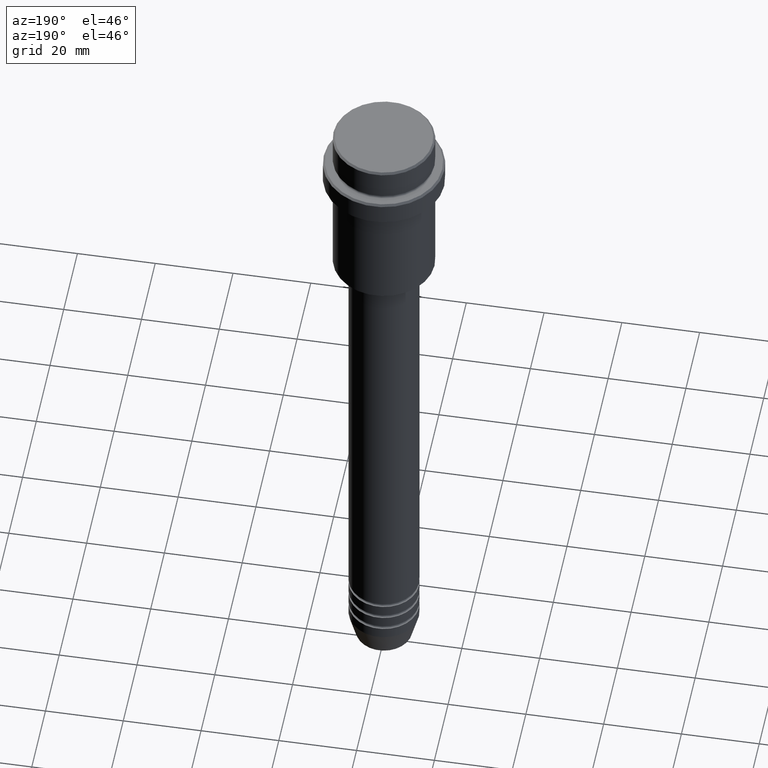
[diagram: clean part render]
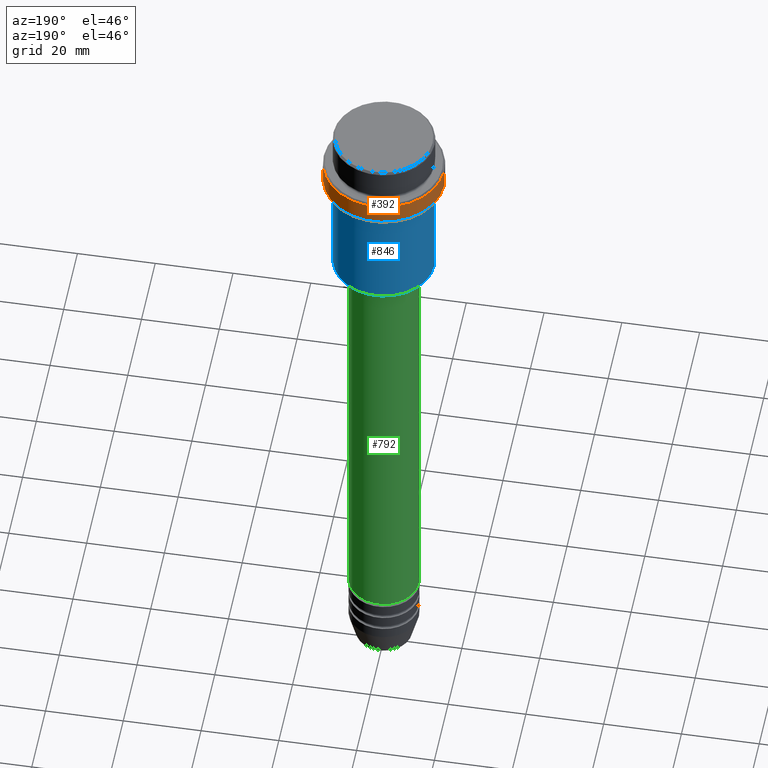
[diagram: same view with three faces highlighted in distinct colors, each labeled with its STEP entity id]
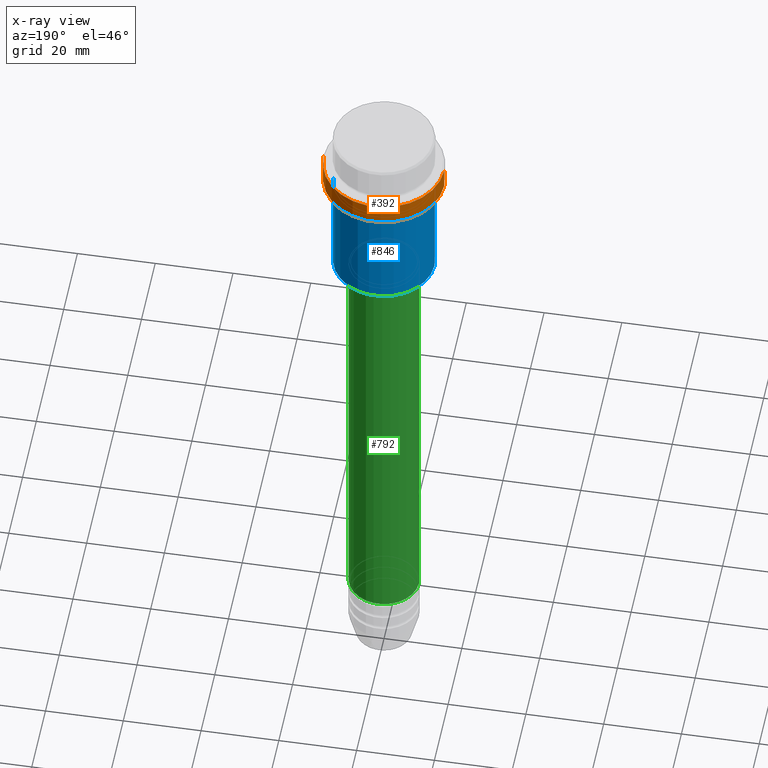
[diagram: x-ray of the same camera — body ghosted, the three highlighted faces saturated]
A machine part, auxiliary view with three faces highlighted in distinct colors.
The next image is the same camera in x-ray (body ghosted, the three faces saturated) — at least one of them is partly hidden behind the body in this view.
Their STEP definitions:

[orange] entity #392 — the highlighted cylindrical surface (partial cylindrical patch) has radius 15.5 mm, axis along (-0, -0, 1).
#26 = CARTESIAN_POINT ( 'NONE',  ( 15.50000000000000000, 0.000000000000000000, 0.000000000000000000 ) ) ;
#56 = VECTOR ( 'NONE', #130, 1000.000000000000000 ) ;
#87 = LINE ( 'NONE', #844, #969 ) ;
#130 = DIRECTION ( 'NONE',  ( -0.000000000000000000, -0.000000000000000000, 1.000000000000000000 ) ) ;
#137 = LINE ( 'NONE', #26, #56 ) ;
#174 = EDGE_CURVE ( 'NONE', #296, #228, #664, .T. ) ;
#228 = VERTEX_POINT ( 'NONE', #775 ) ;
#256 = AXIS2_PLACEMENT_3D ( 'NONE', #889, #651, #1000 ) ;
#262 = EDGE_LOOP ( 'NONE', ( #1387, #1279, #933, #439 ) ) ;
#268 = EDGE_CURVE ( 'NONE', #397, #228, #137, .T. ) ;
#280 = CIRCLE ( 'NONE', #736, 15.50000000000000000 ) ;
#296 = VERTEX_POINT ( 'NONE', #657 ) ;
#382 = CARTESIAN_POINT ( 'NONE',  ( -15.50000000000000000, 1.898202538678397557E-15, -15.00000000000000000 ) ) ;
#392 = ADVANCED_FACE ( 'NONE', ( #823 ), #921, .T. ) ;
#397 = VERTEX_POINT ( 'NONE', #800 ) ;
#434 = DIRECTION ( 'NONE',  ( -0.000000000000000000, -0.000000000000000000, 1.000000000000000000 ) ) ;
#439 = ORIENTED_EDGE ( 'NONE', *, *, #268, .F. ) ;
#471 = EDGE_CURVE ( 'NONE', #1349, #296, #87, .T. ) ;
#640 = DIRECTION ( 'NONE',  ( -0.000000000000000000, -0.000000000000000000, 1.000000000000000000 ) ) ;
#651 = DIRECTION ( 'NONE',  ( 0.000000000000000000, 0.000000000000000000, -1.000000000000000000 ) ) ;
#657 = CARTESIAN_POINT ( 'NONE',  ( -15.50000000000000000, 1.898202538678397557E-15, -9.500000000000012434 ) ) ;
#664 = CIRCLE ( 'NONE', #256, 15.50000000000000000 ) ;
#680 = CARTESIAN_POINT ( 'NONE',  ( 0.000000000000000000, 0.000000000000000000, -15.00000000000000000 ) ) ;
#684 = DIRECTION ( 'NONE',  ( 1.000000000000000000, 0.000000000000000000, 0.000000000000000000 ) ) ;
#696 = CARTESIAN_POINT ( 'NONE',  ( 0.000000000000000000, 0.000000000000000000, 0.000000000000000000 ) ) ;
#736 = AXIS2_PLACEMENT_3D ( 'NONE', #680, #434, #684 ) ;
#775 = CARTESIAN_POINT ( 'NONE',  ( 15.50000000000000000, 0.000000000000000000, -9.500000000000012434 ) ) ;
#780 = AXIS2_PLACEMENT_3D ( 'NONE', #696, #1128, #1143 ) ;
#800 = CARTESIAN_POINT ( 'NONE',  ( 15.50000000000000000, 0.000000000000000000, -15.00000000000000000 ) ) ;
#823 = FACE_OUTER_BOUND ( 'NONE', #262, .T. ) ;
#844 = CARTESIAN_POINT ( 'NONE',  ( -15.50000000000000000, 1.898202538678397557E-15, 0.000000000000000000 ) ) ;
#863 = EDGE_CURVE ( 'NONE', #397, #1349, #280, .T. ) ;
#889 = CARTESIAN_POINT ( 'NONE',  ( 0.000000000000000000, 0.000000000000000000, -9.500000000000012434 ) ) ;
#921 = CYLINDRICAL_SURFACE ( 'NONE', #780, 15.50000000000000000 ) ;
#933 = ORIENTED_EDGE ( 'NONE', *, *, #174, .T. ) ;
#969 = VECTOR ( 'NONE', #640, 1000.000000000000000 ) ;
#1000 = DIRECTION ( 'NONE',  ( 1.000000000000000000, 0.000000000000000000, 0.000000000000000000 ) ) ;
#1128 = DIRECTION ( 'NONE',  ( -0.000000000000000000, -0.000000000000000000, 1.000000000000000000 ) ) ;
#1143 = DIRECTION ( 'NONE',  ( 1.000000000000000000, 0.000000000000000000, 0.000000000000000000 ) ) ;
#1279 = ORIENTED_EDGE ( 'NONE', *, *, #471, .T. ) ;
#1349 = VERTEX_POINT ( 'NONE', #382 ) ;
#1387 = ORIENTED_EDGE ( 'NONE', *, *, #863, .T. ) ;

[blue] entity #846 — the highlighted cylindrical surface (partial cylindrical patch) has radius 13 mm, axis along (-0, -0, 1).
#22 = DIRECTION ( 'NONE',  ( 1.000000000000000000, 0.000000000000000000, 0.000000000000000000 ) ) ;
#66 = EDGE_LOOP ( 'NONE', ( #701, #840, #159, #78 ) ) ;
#75 = CARTESIAN_POINT ( 'NONE',  ( 13.00000000000000000, 0.000000000000000000, -44.50000000000002842 ) ) ;
#78 = ORIENTED_EDGE ( 'NONE', *, *, #1299, .F. ) ;
#106 = VECTOR ( 'NONE', #218, 1000.000000000000000 ) ;
#139 = CARTESIAN_POINT ( 'NONE',  ( 13.00000000000000000, 0.000000000000000000, 0.000000000000000000 ) ) ;
#159 = ORIENTED_EDGE ( 'NONE', *, *, #1147, .F. ) ;
#199 = CARTESIAN_POINT ( 'NONE',  ( 0.000000000000000000, 0.000000000000000000, -16.00000000000000000 ) ) ;
#215 = AXIS2_PLACEMENT_3D ( 'NONE', #1378, #813, #705 ) ;
#218 = DIRECTION ( 'NONE',  ( -0.000000000000000000, -0.000000000000000000, 1.000000000000000000 ) ) ;
#232 = CARTESIAN_POINT ( 'NONE',  ( 0.000000000000000000, 0.000000000000000000, 0.000000000000000000 ) ) ;
#247 = CARTESIAN_POINT ( 'NONE',  ( -13.00000000000000000, 1.592040838891559095E-15, 0.000000000000000000 ) ) ;
#320 = EDGE_CURVE ( 'NONE', #587, #1194, #1102, .T. ) ;
#357 = CIRCLE ( 'NONE', #512, 13.00000000000000000 ) ;
#436 = LINE ( 'NONE', #247, #581 ) ;
#512 = AXIS2_PLACEMENT_3D ( 'NONE', #199, #862, #1059 ) ;
#574 = FACE_OUTER_BOUND ( 'NONE', #66, .T. ) ;
#581 = VECTOR ( 'NONE', #869, 1000.000000000000000 ) ;
#587 = VERTEX_POINT ( 'NONE', #75 ) ;
#604 = VERTEX_POINT ( 'NONE', #1196 ) ;
#648 = CARTESIAN_POINT ( 'NONE',  ( -13.00000000000000000, 1.592040838891559095E-15, -44.50000000000002842 ) ) ;
#652 = EDGE_CURVE ( 'NONE', #1194, #604, #436, .T. ) ;
#655 = DIRECTION ( 'NONE',  ( -0.000000000000000000, -0.000000000000000000, 1.000000000000000000 ) ) ;
#701 = ORIENTED_EDGE ( 'NONE', *, *, #320, .T. ) ;
#705 = DIRECTION ( 'NONE',  ( -1.000000000000000000, 0.000000000000000000, 0.000000000000000000 ) ) ;
#813 = DIRECTION ( 'NONE',  ( -0.000000000000000000, -0.000000000000000000, 1.000000000000000000 ) ) ;
#840 = ORIENTED_EDGE ( 'NONE', *, *, #652, .T. ) ;
#846 = ADVANCED_FACE ( 'NONE', ( #574 ), #1011, .T. ) ;
#862 = DIRECTION ( 'NONE',  ( -0.000000000000000000, -0.000000000000000000, 1.000000000000000000 ) ) ;
#869 = DIRECTION ( 'NONE',  ( -0.000000000000000000, -0.000000000000000000, 1.000000000000000000 ) ) ;
#891 = LINE ( 'NONE', #139, #106 ) ;
#970 = VERTEX_POINT ( 'NONE', #1039 ) ;
#1011 = CYLINDRICAL_SURFACE ( 'NONE', #1360, 13.00000000000000000 ) ;
#1039 = CARTESIAN_POINT ( 'NONE',  ( 13.00000000000000000, 0.000000000000000000, -16.00000000000000000 ) ) ;
#1059 = DIRECTION ( 'NONE',  ( 1.000000000000000000, 0.000000000000000000, 0.000000000000000000 ) ) ;
#1102 = CIRCLE ( 'NONE', #215, 13.00000000000000000 ) ;
#1147 = EDGE_CURVE ( 'NONE', #970, #604, #357, .T. ) ;
#1194 = VERTEX_POINT ( 'NONE', #648 ) ;
#1196 = CARTESIAN_POINT ( 'NONE',  ( -13.00000000000000000, 1.592040838891559095E-15, -16.00000000000000000 ) ) ;
#1299 = EDGE_CURVE ( 'NONE', #587, #970, #891, .T. ) ;
#1360 = AXIS2_PLACEMENT_3D ( 'NONE', #232, #655, #22 ) ;
#1378 = CARTESIAN_POINT ( 'NONE',  ( 0.000000000000000000, 0.000000000000000000, -44.50000000000002842 ) ) ;

[green] entity #792 — the highlighted cylindrical surface (edge-blend (fillet) strip) has radius 9 mm, axis along (-0, -0, 1).
#24 = FACE_OUTER_BOUND ( 'NONE', #50, .T. ) ;
#50 = EDGE_LOOP ( 'NONE', ( #145, #1032, #52, #1120 ) ) ;
#52 = ORIENTED_EDGE ( 'NONE', *, *, #1098, .F. ) ;
#127 = CARTESIAN_POINT ( 'NONE',  ( 9.000000000000001776, 0.000000000000000000, -46.00000000000000000 ) ) ;
#133 = DIRECTION ( 'NONE',  ( -0.000000000000000000, -0.000000000000000000, 1.000000000000000000 ) ) ;
#145 = ORIENTED_EDGE ( 'NONE', *, *, #678, .T. ) ;
#149 = CIRCLE ( 'NONE', #808, 9.000000000000000000 ) ;
#172 = CARTESIAN_POINT ( 'NONE',  ( -9.000000000000001776, 1.102182119232617911E-15, -46.00000000000000000 ) ) ;
#220 = CIRCLE ( 'NONE', #1249, 9.000000000000001776 ) ;
#233 = CARTESIAN_POINT ( 'NONE',  ( 0.000000000000000000, 0.000000000000000000, 0.000000000000000000 ) ) ;
#306 = VECTOR ( 'NONE', #133, 1000.000000000000000 ) ;
#319 = CARTESIAN_POINT ( 'NONE',  ( 0.000000000000000000, 0.000000000000000000, -46.00000000000000000 ) ) ;
#329 = CARTESIAN_POINT ( 'NONE',  ( 9.000000000000001776, 0.000000000000000000, 0.000000000000000000 ) ) ;
#414 = DIRECTION ( 'NONE',  ( -0.000000000000000000, -0.000000000000000000, 1.000000000000000000 ) ) ;
#430 = DIRECTION ( 'NONE',  ( 1.000000000000000000, 0.000000000000000000, 0.000000000000000000 ) ) ;
#541 = DIRECTION ( 'NONE',  ( 1.000000000000000000, 0.000000000000000000, 0.000000000000000000 ) ) ;
#560 = DIRECTION ( 'NONE',  ( -0.000000000000000000, -0.000000000000000000, 1.000000000000000000 ) ) ;
#567 = LINE ( 'NONE', #575, #734 ) ;
#575 = CARTESIAN_POINT ( 'NONE',  ( -9.000000000000001776, 1.102182119232617911E-15, 0.000000000000000000 ) ) ;
#634 = VERTEX_POINT ( 'NONE', #127 ) ;
#678 = EDGE_CURVE ( 'NONE', #1171, #1064, #149, .T. ) ;
#681 = CYLINDRICAL_SURFACE ( 'NONE', #1040, 9.000000000000001776 ) ;
#734 = VECTOR ( 'NONE', #774, 1000.000000000000000 ) ;
#741 = EDGE_CURVE ( 'NONE', #1064, #1394, #567, .T. ) ;
#774 = DIRECTION ( 'NONE',  ( -0.000000000000000000, -0.000000000000000000, 1.000000000000000000 ) ) ;
#792 = ADVANCED_FACE ( 'NONE', ( #24 ), #681, .T. ) ;
#808 = AXIS2_PLACEMENT_3D ( 'NONE', #1323, #560, #430 ) ;
#912 = EDGE_CURVE ( 'NONE', #1171, #634, #1305, .T. ) ;
#946 = CARTESIAN_POINT ( 'NONE',  ( 9.000000000000000000, 0.000000000000000000, -160.9999999999999147 ) ) ;
#974 = DIRECTION ( 'NONE',  ( 1.000000000000000000, 0.000000000000000000, 0.000000000000000000 ) ) ;
#1032 = ORIENTED_EDGE ( 'NONE', *, *, #741, .T. ) ;
#1040 = AXIS2_PLACEMENT_3D ( 'NONE', #233, #1101, #541 ) ;
#1064 = VERTEX_POINT ( 'NONE', #1134 ) ;
#1098 = EDGE_CURVE ( 'NONE', #634, #1394, #220, .T. ) ;
#1101 = DIRECTION ( 'NONE',  ( -0.000000000000000000, -0.000000000000000000, 1.000000000000000000 ) ) ;
#1120 = ORIENTED_EDGE ( 'NONE', *, *, #912, .F. ) ;
#1134 = CARTESIAN_POINT ( 'NONE',  ( -9.000000000000000000, 1.102182119232617714E-15, -160.9999999999999147 ) ) ;
#1171 = VERTEX_POINT ( 'NONE', #946 ) ;
#1249 = AXIS2_PLACEMENT_3D ( 'NONE', #319, #414, #974 ) ;
#1305 = LINE ( 'NONE', #329, #306 ) ;
#1323 = CARTESIAN_POINT ( 'NONE',  ( 0.000000000000000000, 0.000000000000000000, -160.9999999999999147 ) ) ;
#1394 = VERTEX_POINT ( 'NONE', #172 ) ;